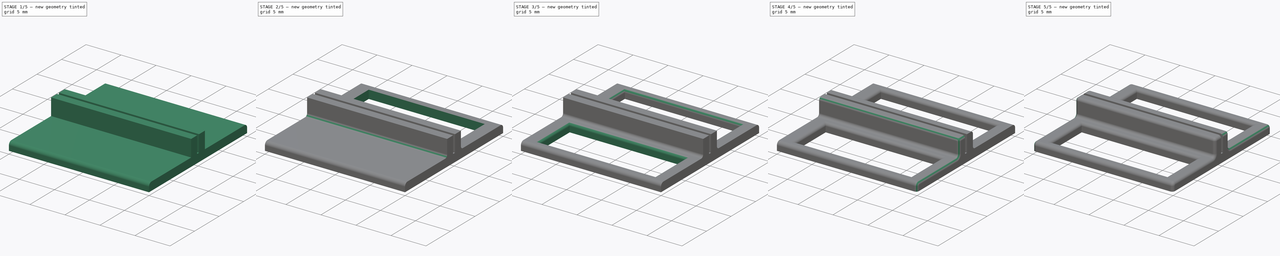
[diagram: build sequence overview — one tinted view per stage of 5, left to right]
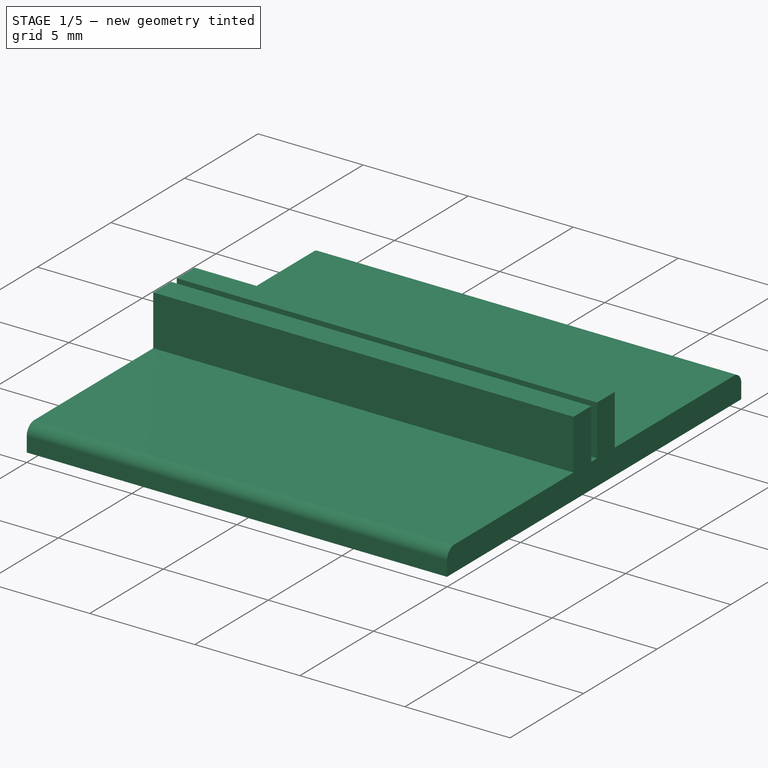
[diagram: stage 1 of 5 — iso view after this stage's code; geometry added in this stage tinted green]
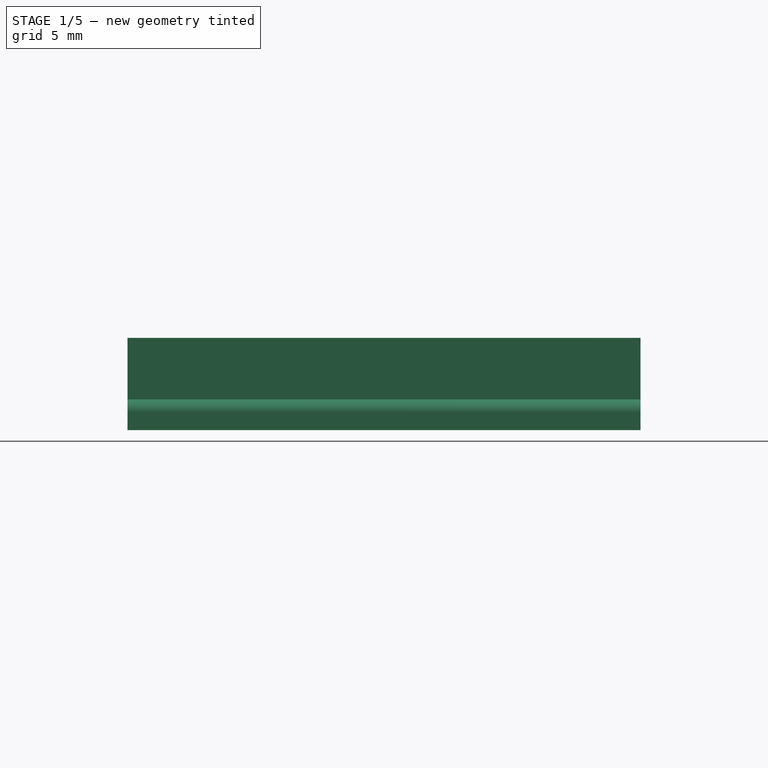
[diagram: stage 1 of 5 — front view after this stage's code; geometry added in this stage tinted green]
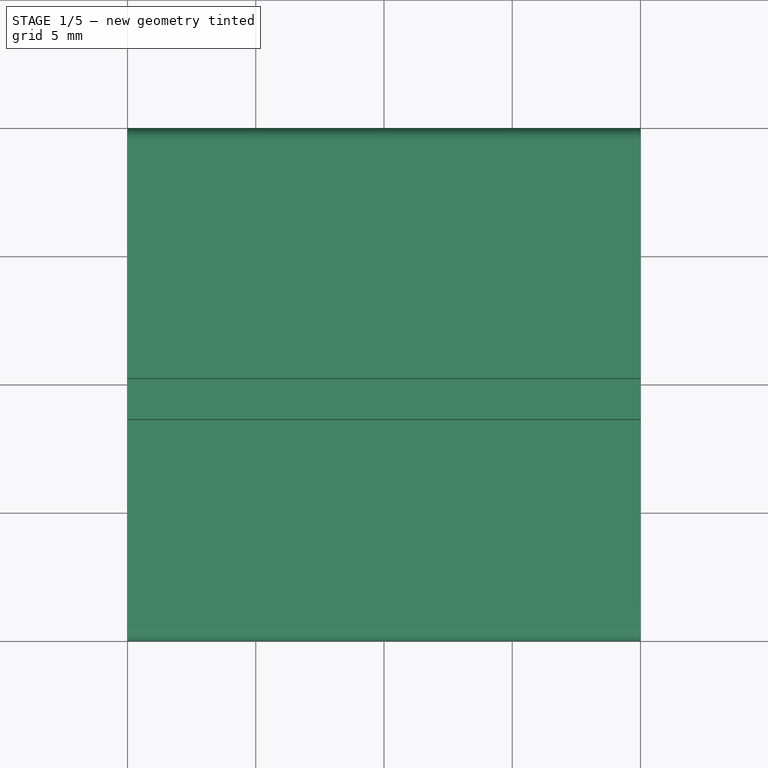
[diagram: stage 1 of 5 — top view after this stage's code; geometry added in this stage tinted green]
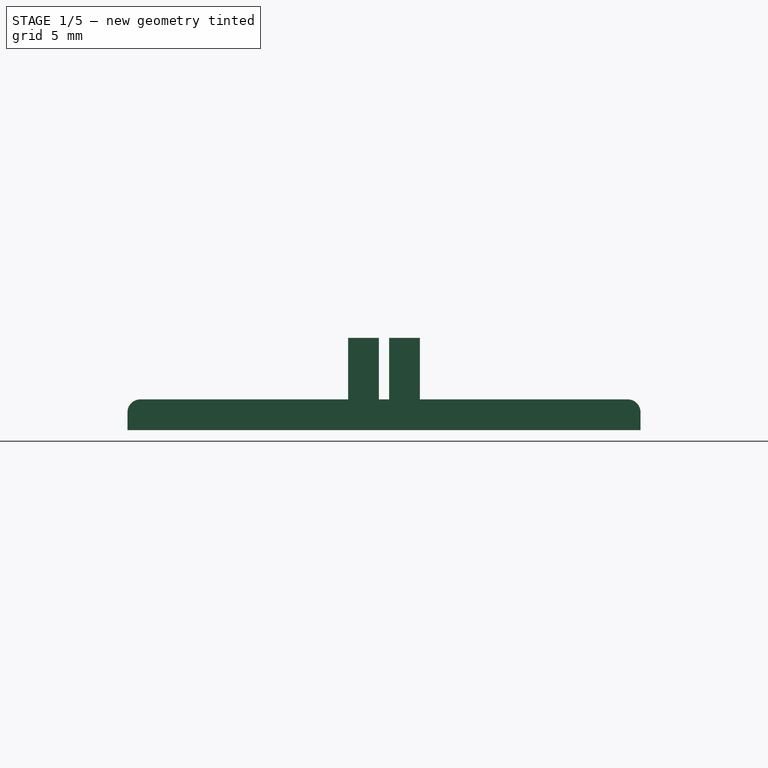
[diagram: stage 1 of 5 — right view after this stage's code; geometry added in this stage tinted green]
FCSTD DOCUMENT  (FreeCAD 0.16R)
Label: cardholder
License: All rights reserved
LicenseURL: http://en.wikipedia.org/wiki/All_rights_reserved
objects: PartDesign::Fillet×12, Sketcher::SketchObject×4, PartDesign::Pocket×2, PartDesign::Pad×1
note: 22 computed .brp shape members not serialized (recipe doc carries the construction recipe); baked Part::Feature solids carry a one-line shape summary decoded from their .brp

FEATURE [Sketcher::SketchObject] Sketch
  Placement = pos=(0,0,0) rot=(0.57735,0.57735,0.57735;2.0944rad)
  sketch-geometry (12):
    g0: LineSegment StartX=-10 StartY=0 StartZ=0 EndX=10 EndY=0 EndZ=0
    g1: LineSegment StartX=10 StartY=0 StartZ=0 EndX=10 EndY=1.2 EndZ=0
    g2: LineSegment StartX=10 StartY=1.2 StartZ=0 EndX=1.4 EndY=1.2 EndZ=0
    g3: LineSegment StartX=1.4 StartY=1.2 StartZ=0 EndX=1.4 EndY=3.6 EndZ=0
    g4: LineSegment StartX=1.4 StartY=3.6 StartZ=0 EndX=0.2 EndY=3.6 EndZ=0
    g5: LineSegment StartX=0.2 StartY=3.6 StartZ=0 EndX=0.2 EndY=1.2 EndZ=0
    g6: LineSegment StartX=0.2 StartY=1.2 StartZ=0 EndX=-0.2 EndY=1.2 EndZ=0
    g7: LineSegment StartX=-0.2 StartY=1.2 StartZ=0 EndX=-0.2 EndY=3.6 EndZ=0
    g8: LineSegment StartX=-0.2 StartY=3.6 StartZ=0 EndX=-1.4 EndY=3.6 EndZ=0
    g9: LineSegment StartX=-1.4 StartY=3.6 StartZ=0 EndX=-1.4 EndY=1.2 EndZ=0
    g10: LineSegment StartX=-1.4 StartY=1.2 StartZ=0 EndX=-10 EndY=1.2 EndZ=0
    g11: LineSegment StartX=-10 StartY=1.2 StartZ=0 EndX=-10 EndY=0 EndZ=0
  constraints (36):
    c: PointOnObject(g0,g-1)
    c: Horizontal(g0)
    c: Coincident(g0,g1)
    c: Vertical(g1)
    c: Coincident(g1,g2)
    c: Horizontal(g2)
    c: Coincident(g2,g3)
    c: Coincident(g3,g4)
    c: Coincident(g4,g5)
    c: Coincident(g5,g6)
    c: Coincident(g6,g7)
    c: Vertical(g7)
    c: Coincident(g7,g8)
    c: Coincident(g8,g9)
    c: Coincident(g9,g10)
    c: Horizontal(g10)
    c: Coincident(g10,g11)
    c: Coincident(g11,g0)
    c: DistanceX(g0,g0) = 20
    c: Equal(g1,g11)
    c: DistanceY(g1,g1) = 1.2
    c: Equal(g8,g4)
    c: DistanceX(g4,g4) = 1.2
    c: Vertical(g3)
    c: Vertical(g5)
    c: Horizontal(g4)
    c: Horizontal(g8)
    c: Vertical(g9)
    c: Symmetric(g7,g4,g-2)
    c: Horizontal(g6)
    c: DistanceX(g6,g6) = 0.4
    c: Equal(g9,g7)
    c: Equal(g7,g5)
    c: Equal(g5,g3)
    c: DistanceY(g3,g3) = 2.4
    c: Symmetric(g10,g1,g-2)
FEATURE [PartDesign::Pad] Pad
  Length = 20
  Length2 = 100
  Placement = pos=(0,0,0) rot=(0.57735,0.57735,0.57735;2.0944rad)
  Sketch = -> Sketch
  Type = 0
FEATURE [PartDesign::Fillet] Fillet
  Base = -> Pad [Edge32]
  Placement = pos=(0,0,0) rot=(0.57735,0.57735,0.57735;2.0944rad)
  Radius = 0.5
FEATURE [PartDesign::Fillet] Fillet001
  Base = -> Fillet [Edge35]
  Placement = pos=(0,0,0) rot=(0.57735,0.57735,0.57735;2.0944rad)
  Radius = 0.5
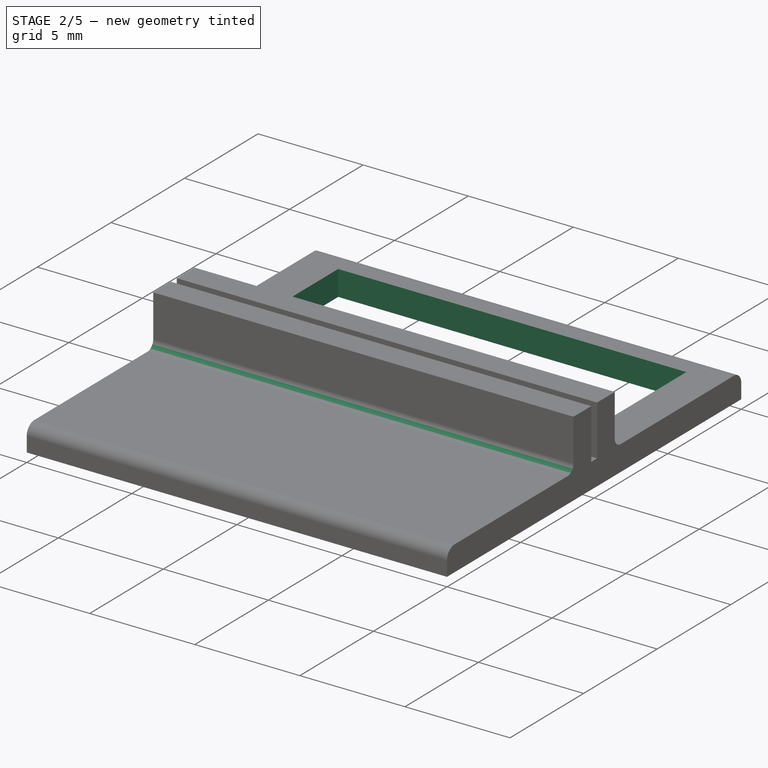
[diagram: stage 2 of 5 — iso view after this stage's code; geometry added in this stage tinted green]
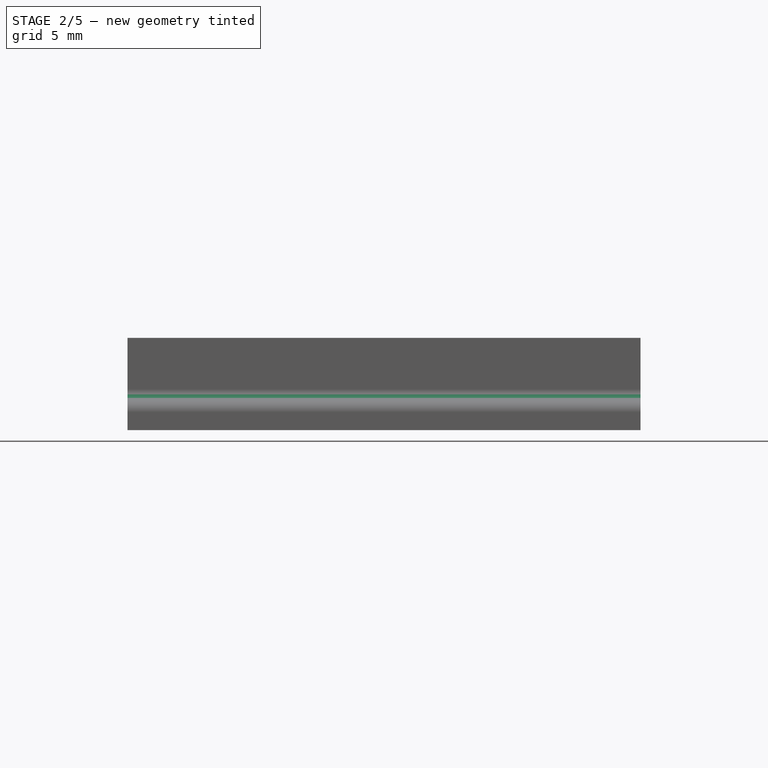
[diagram: stage 2 of 5 — front view after this stage's code; geometry added in this stage tinted green]
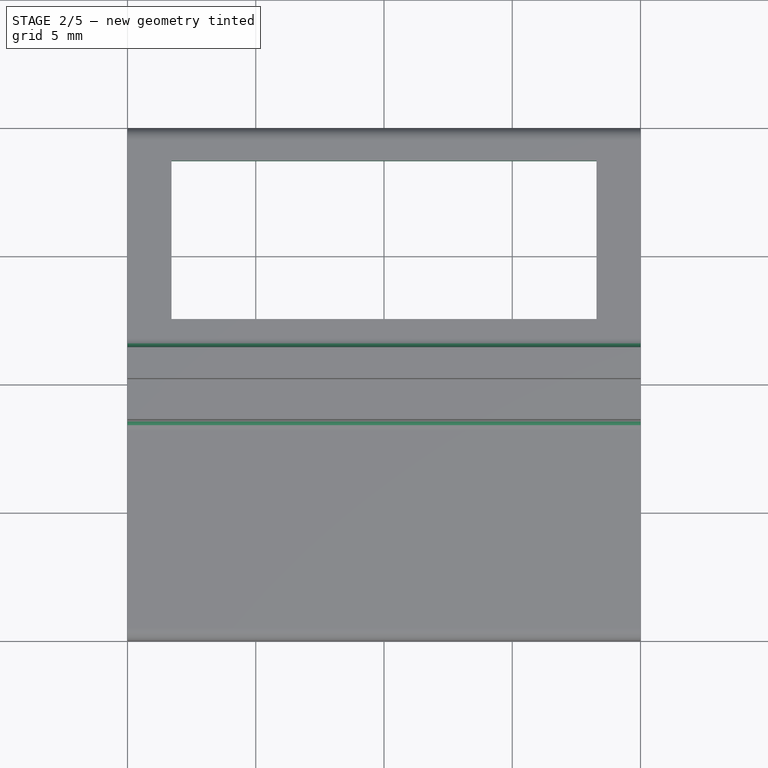
[diagram: stage 2 of 5 — top view after this stage's code; geometry added in this stage tinted green]
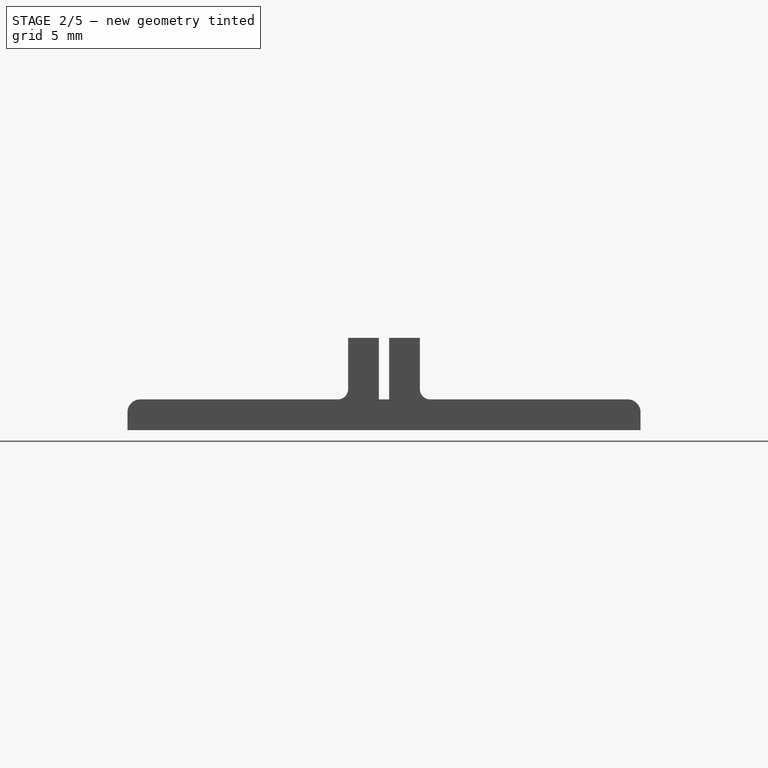
[diagram: stage 2 of 5 — right view after this stage's code; geometry added in this stage tinted green]
FEATURE [PartDesign::Fillet] Fillet002
  Base = -> Fillet001 [Edge32]
  Placement = pos=(0,0,0) rot=(0.57735,0.57735,0.57735;2.0944rad)
  Radius = 0.4
FEATURE [PartDesign::Fillet] Fillet003
  Base = -> Fillet002 [Edge41]
  Placement = pos=(0,0,0) rot=(0.57735,0.57735,0.57735;2.0944rad)
  Radius = 0.4
FEATURE [Sketcher::SketchObject] Sketch001
FEATURE [Sketcher::SketchObject] Sketch002
  ExternalGeometry = -> [Fillet003]
  Placement = pos=(0,0,1.2) rot=(0,0,-1;1.5708rad)
  Support = -> Fillet003 [Face2]
  sketch-geometry (4):
    g0: LineSegment StartX=-8.71715 StartY=18.2846 StartZ=0 EndX=-2.54558 EndY=18.2846 EndZ=0
    g1: LineSegment StartX=-2.54558 StartY=18.2846 StartZ=0 EndX=-2.54558 EndY=1.7154 EndZ=0
    g2: LineSegment StartX=-2.54558 StartY=1.7154 StartZ=0 EndX=-8.71715 EndY=1.7154 EndZ=0
    g3: LineSegment StartX=-8.71715 StartY=1.7154 StartZ=0 EndX=-8.71715 EndY=18.2846 EndZ=0
  constraints (8):
    c: Coincident(g0,g1)
    c: Coincident(g1,g2)
    c: Coincident(g2,g3)
    c: Coincident(g3,g0)
    c: Horizontal(g0)
    c: Horizontal(g2)
    c: Vertical(g1)
    c: Vertical(g3)
FEATURE [PartDesign::Pocket] Pocket
  Length = 23
  Placement = pos=(0,0,0) rot=(0.57735,0.57735,0.57735;2.0944rad)
  Sketch = -> Sketch002
  Type = 0
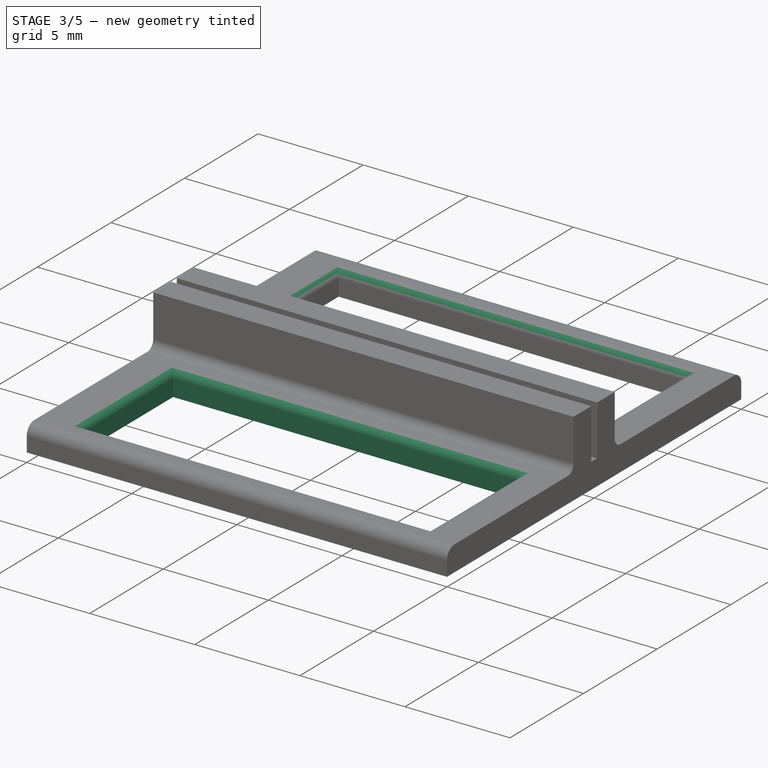
[diagram: stage 3 of 5 — iso view after this stage's code; geometry added in this stage tinted green]
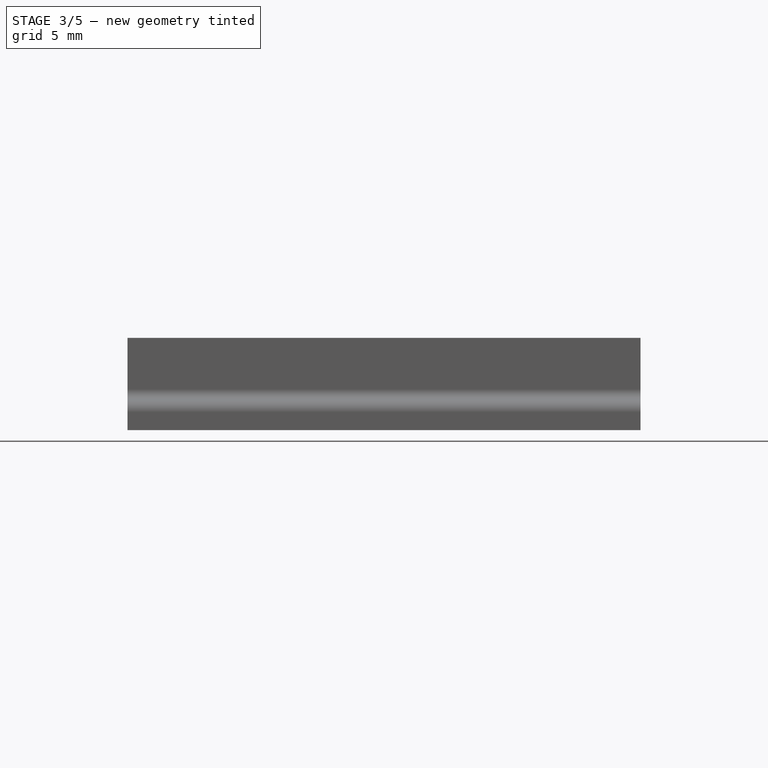
[diagram: stage 3 of 5 — front view after this stage's code; geometry added in this stage tinted green]
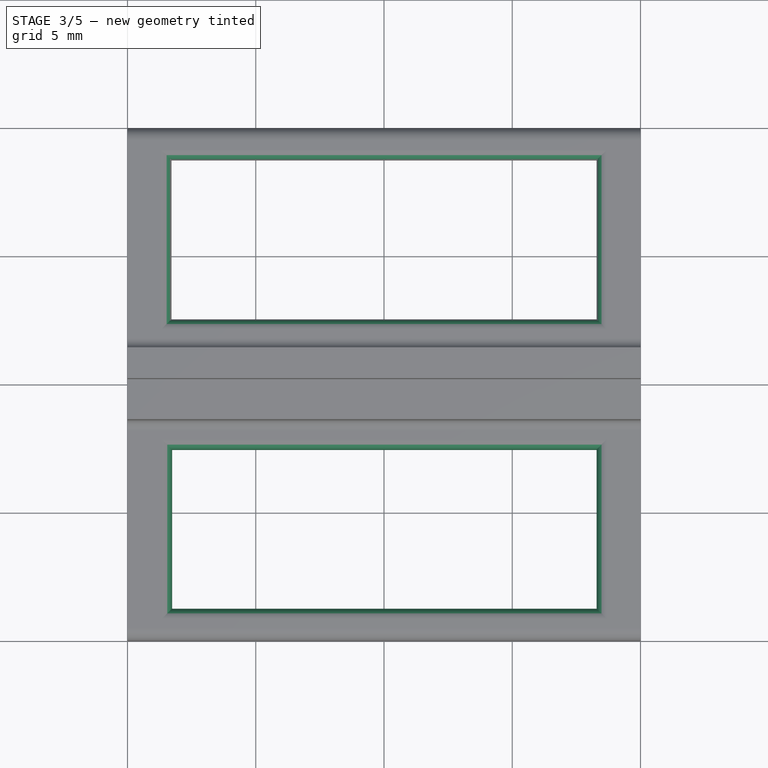
[diagram: stage 3 of 5 — top view after this stage's code; geometry added in this stage tinted green]
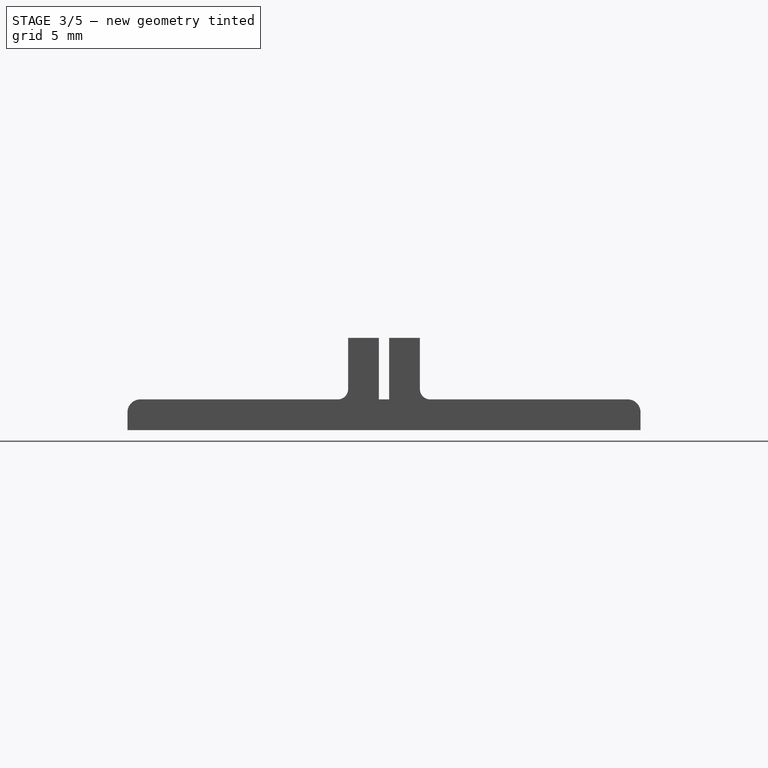
[diagram: stage 3 of 5 — right view after this stage's code; geometry added in this stage tinted green]
FEATURE [Sketcher::SketchObject] Sketch003
  Placement = pos=(0,0,1.2) rot=(0,0,-1;1.5708rad)
  Support = -> Pocket [Face14]
  sketch-geometry (8):
    g0: LineSegment StartX=2.53945 StartY=18.2909 StartZ=0 EndX=8.74443 EndY=18.2909 EndZ=0
    g1: LineSegment StartX=8.74443 StartY=18.2909 StartZ=0 EndX=8.74443 EndY=1.73855 EndZ=0
    g2: LineSegment StartX=8.74443 StartY=1.73855 StartZ=0 EndX=2.53945 EndY=1.73855 EndZ=0
    g3: LineSegment StartX=2.53945 StartY=1.73855 StartZ=0 EndX=2.53945 EndY=18.2909 EndZ=0
    g4: LineSegment StartX=-8.74443 StartY=18.2909 StartZ=0 EndX=-2.53945 EndY=18.2909 EndZ=0
    g5: LineSegment StartX=-2.53945 StartY=18.2909 StartZ=0 EndX=-2.53945 EndY=1.71508 EndZ=0
    g6: LineSegment StartX=-2.53945 StartY=1.71508 StartZ=0 EndX=-8.74443 EndY=1.71508 EndZ=0
    g7: LineSegment StartX=-8.74443 StartY=1.71508 StartZ=0 EndX=-8.74443 EndY=18.2909 EndZ=0
  constraints (19):
    c: Coincident(g0,g1)
    c: Coincident(g1,g2)
    c: Coincident(g2,g3)
    c: Coincident(g3,g0)
    c: Horizontal(g0)
    c: Horizontal(g2)
    c: Vertical(g1)
    c: Vertical(g3)
    c: Coincident(g4,g5)
    c: Coincident(g5,g6)
    c: Coincident(g6,g7)
    c: Coincident(g7,g4)
    c: Horizontal(g4)
    c: Horizontal(g6)
    c: Vertical(g5)
    c: Vertical(g7)
    c: Equal(g4,g0)
    c: Equal(g6,g2)
    c: Symmetric(g4,g0,g-2)
FEATURE [PartDesign::Pocket] Pocket001
  Length = 23
  Placement = pos=(0,0,0) rot=(0.57735,0.57735,0.57735;2.0944rad)
  Sketch = -> Sketch003
  Type = 0
FEATURE [PartDesign::Fillet] Fillet004
  Base = -> Pocket001 [Edge57,Edge58,Edge56,Edge59]
  Placement = pos=(0,0,0) rot=(0.57735,0.57735,0.57735;2.0944rad)
  Radius = 0.4
FEATURE [PartDesign::Fillet] Fillet005
  Base = -> Fillet004 [Edge60,Edge59,Edge62,Edge61]
  Placement = pos=(0,0,0) rot=(0.57735,0.57735,0.57735;2.0944rad)
  Radius = 0.4
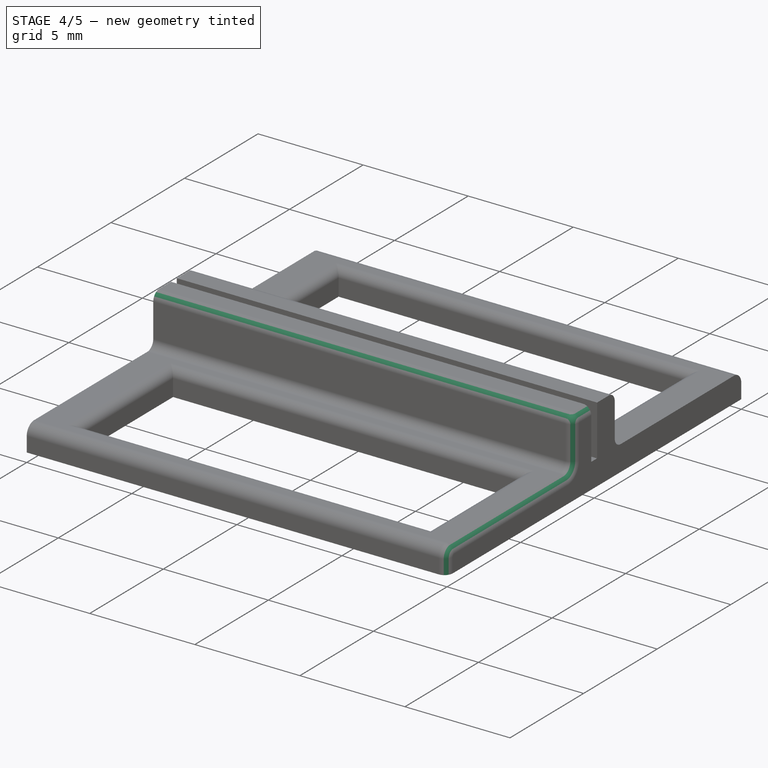
[diagram: stage 4 of 5 — iso view after this stage's code; geometry added in this stage tinted green]
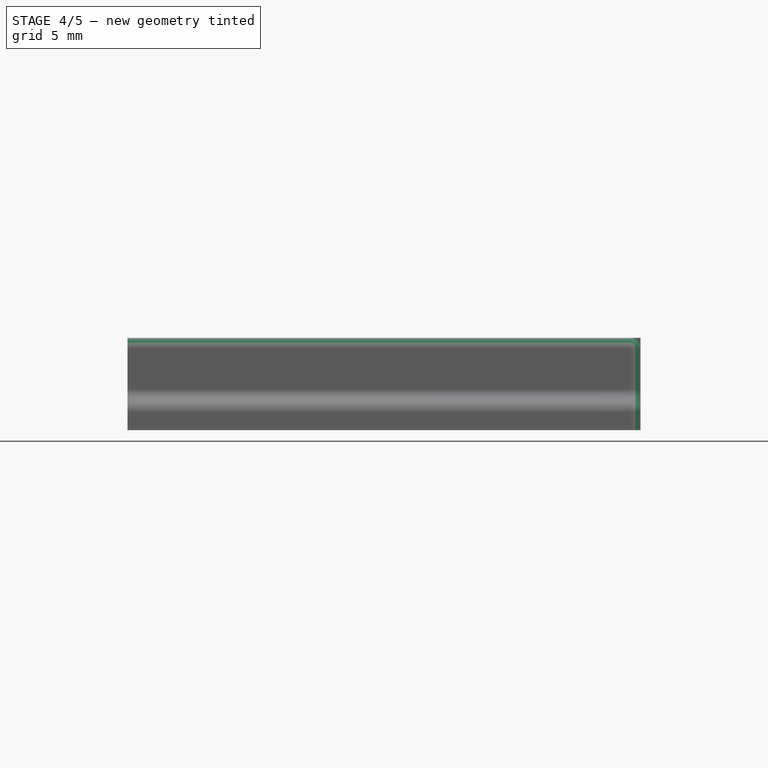
[diagram: stage 4 of 5 — front view after this stage's code; geometry added in this stage tinted green]
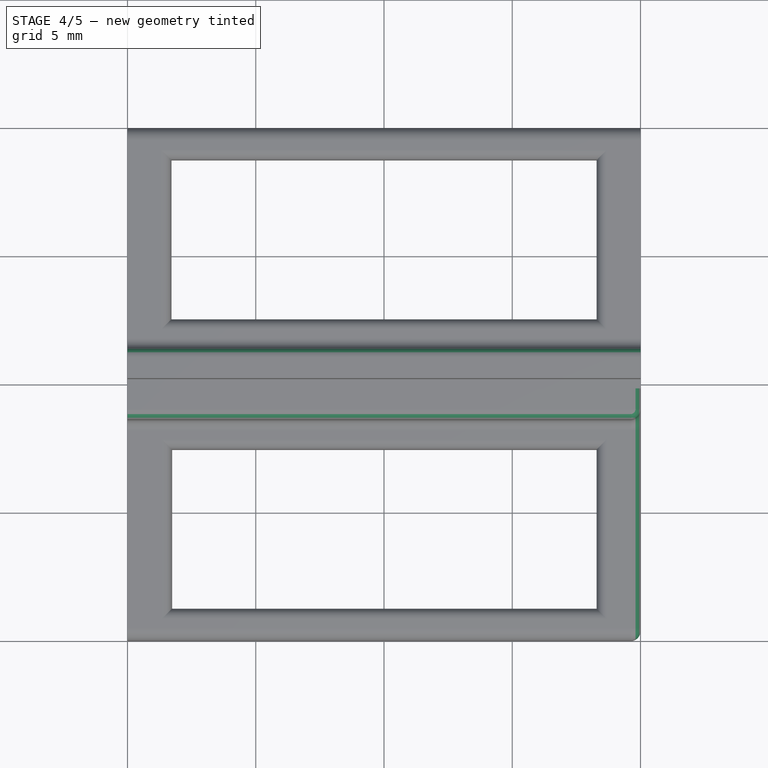
[diagram: stage 4 of 5 — top view after this stage's code; geometry added in this stage tinted green]
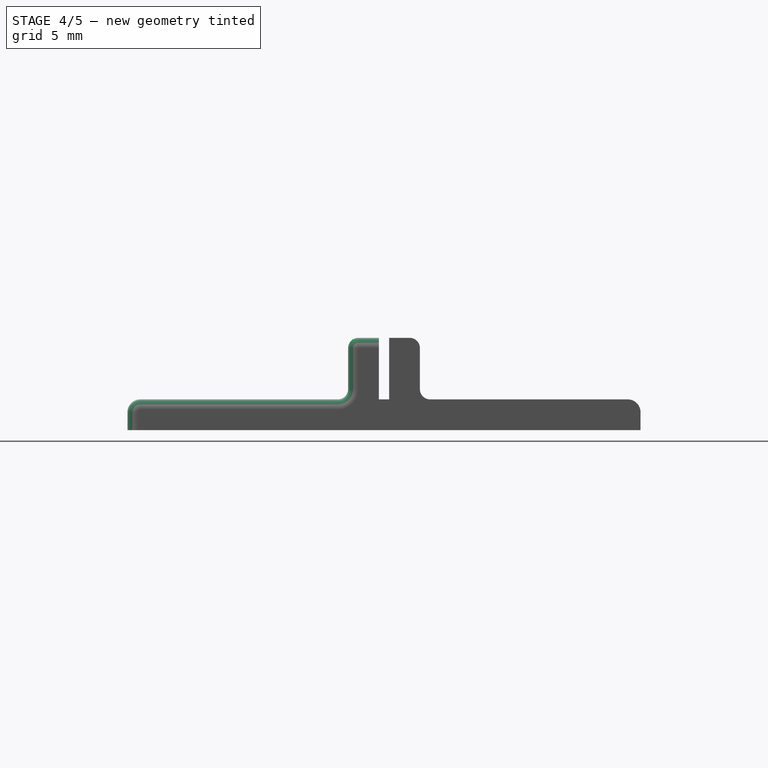
[diagram: stage 4 of 5 — right view after this stage's code; geometry added in this stage tinted green]
FEATURE [PartDesign::Fillet] Fillet006
  Base = -> Fillet005 [Edge75]
  Placement = pos=(0,0,0) rot=(0.57735,0.57735,0.57735;2.0944rad)
  Radius = 0.4
FEATURE [PartDesign::Fillet] Fillet007
  Base = -> Fillet006 [Edge39]
  Placement = pos=(0,0,0) rot=(0.57735,0.57735,0.57735;2.0944rad)
  Radius = 0.4
FEATURE [PartDesign::Fillet] Fillet008
  Base = -> Fillet007 [Edge41]
  Placement = pos=(0,0,0) rot=(0.57735,0.57735,0.57735;2.0944rad)
  Radius = 0.4
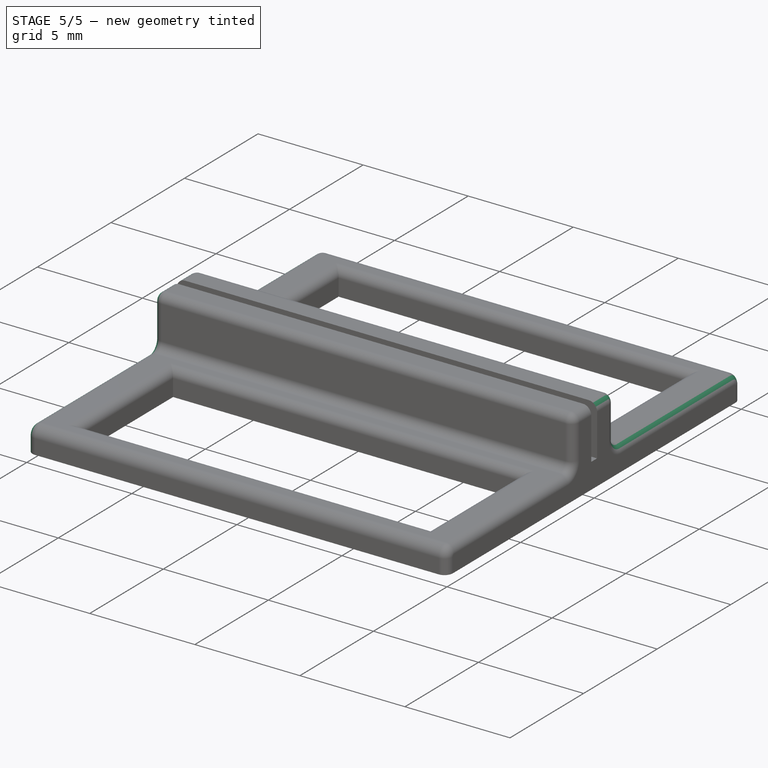
[diagram: stage 5 of 5 — iso view after this stage's code; geometry added in this stage tinted green]
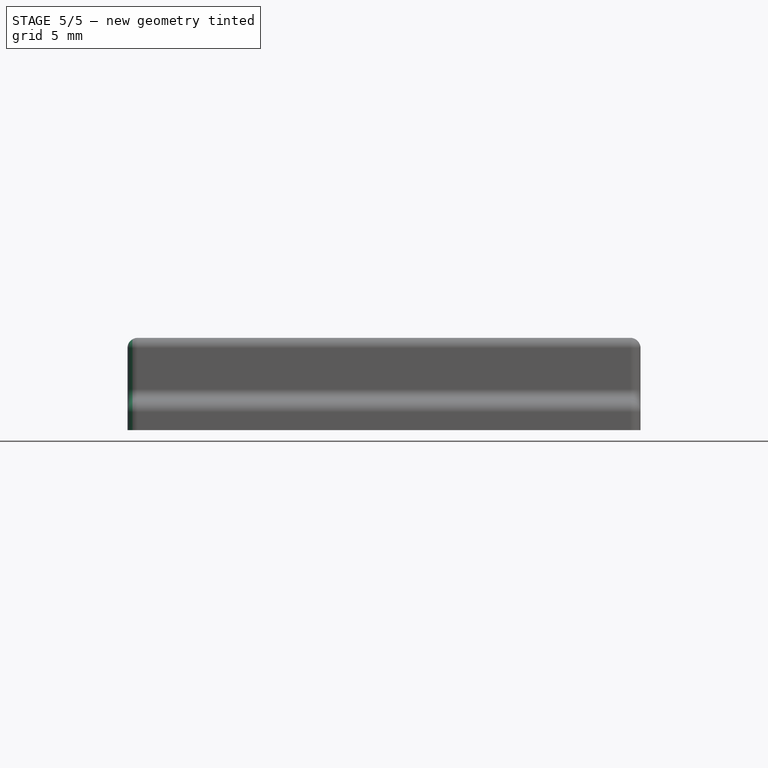
[diagram: stage 5 of 5 — front view after this stage's code; geometry added in this stage tinted green]
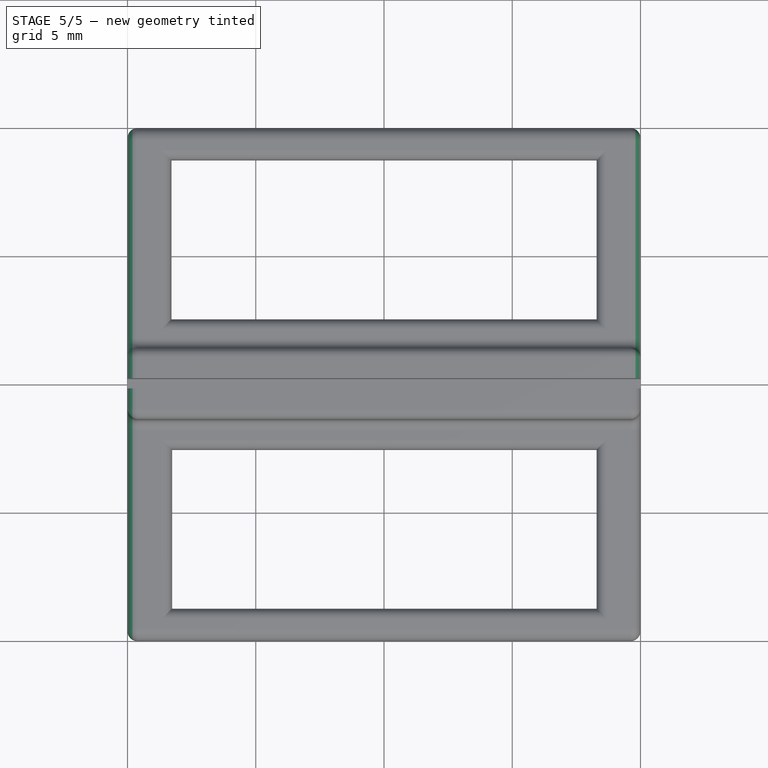
[diagram: stage 5 of 5 — top view after this stage's code; geometry added in this stage tinted green]
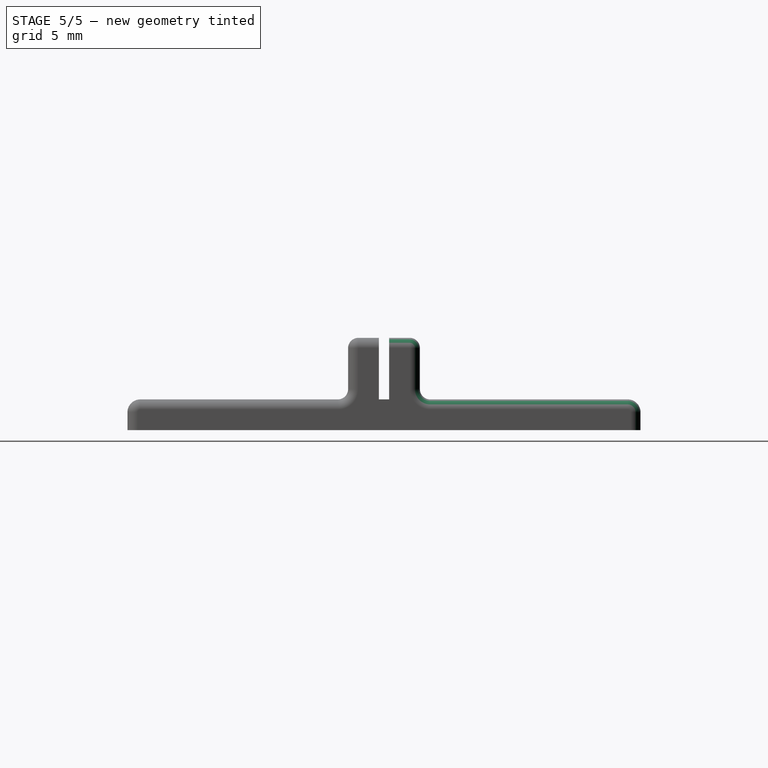
[diagram: stage 5 of 5 — right view after this stage's code; geometry added in this stage tinted green]
FEATURE [PartDesign::Fillet] Fillet009
  Base = -> Fillet008 [Edge31]
  Placement = pos=(0,0,0) rot=(0.57735,0.57735,0.57735;2.0944rad)
  Radius = 0.4
FEATURE [PartDesign::Fillet] Fillet010
  Base = -> Fillet009 [Edge69]
  Placement = pos=(0,0,0) rot=(0.57735,0.57735,0.57735;2.0944rad)
  Radius = 0.4
FEATURE [PartDesign::Fillet] Fillet011
  Base = -> Fillet010 [Edge18]
  Placement = pos=(0,0,0) rot=(0.57735,0.57735,0.57735;2.0944rad)
  Radius = 0.4
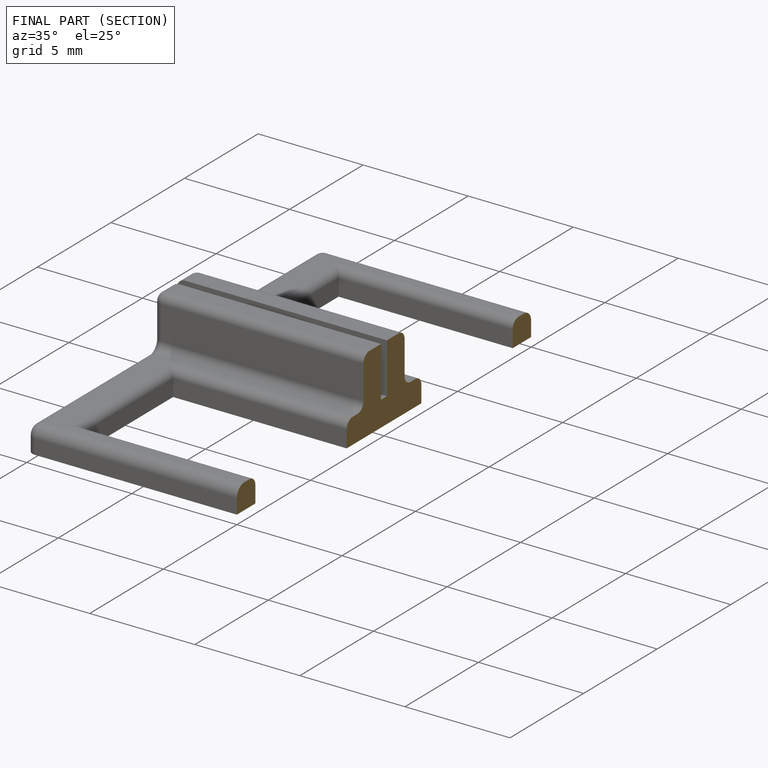
[diagram: finished part — half-section view (interior)]
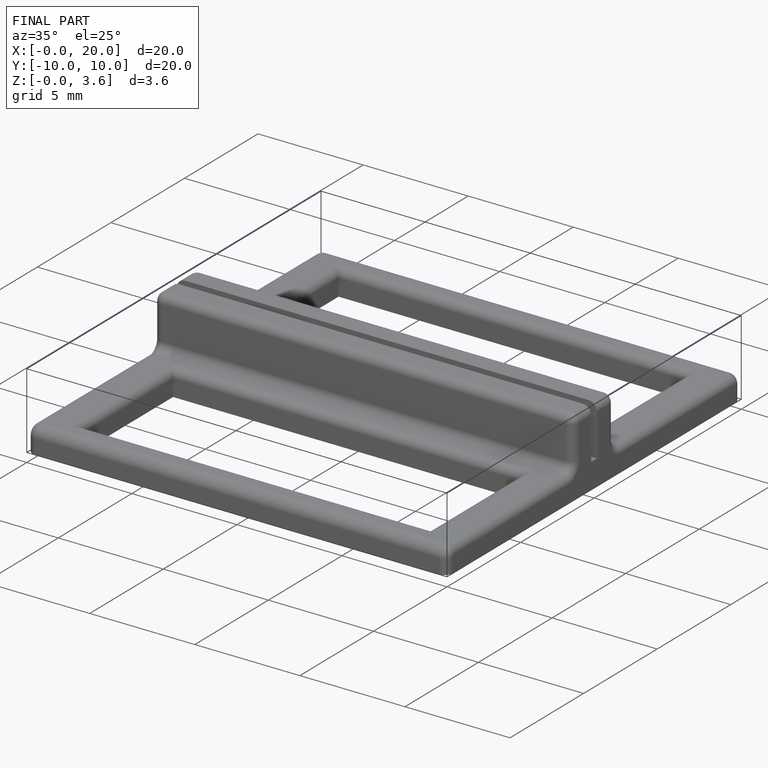
[diagram: finished part — iso view with bounding-box wireframe]
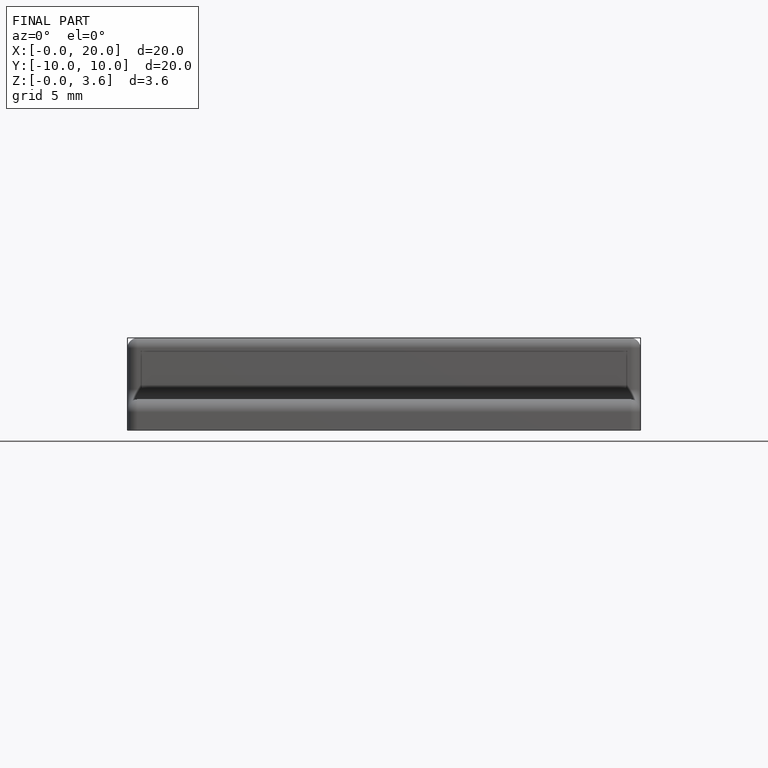
[diagram: finished part — front view with bounding-box wireframe]
